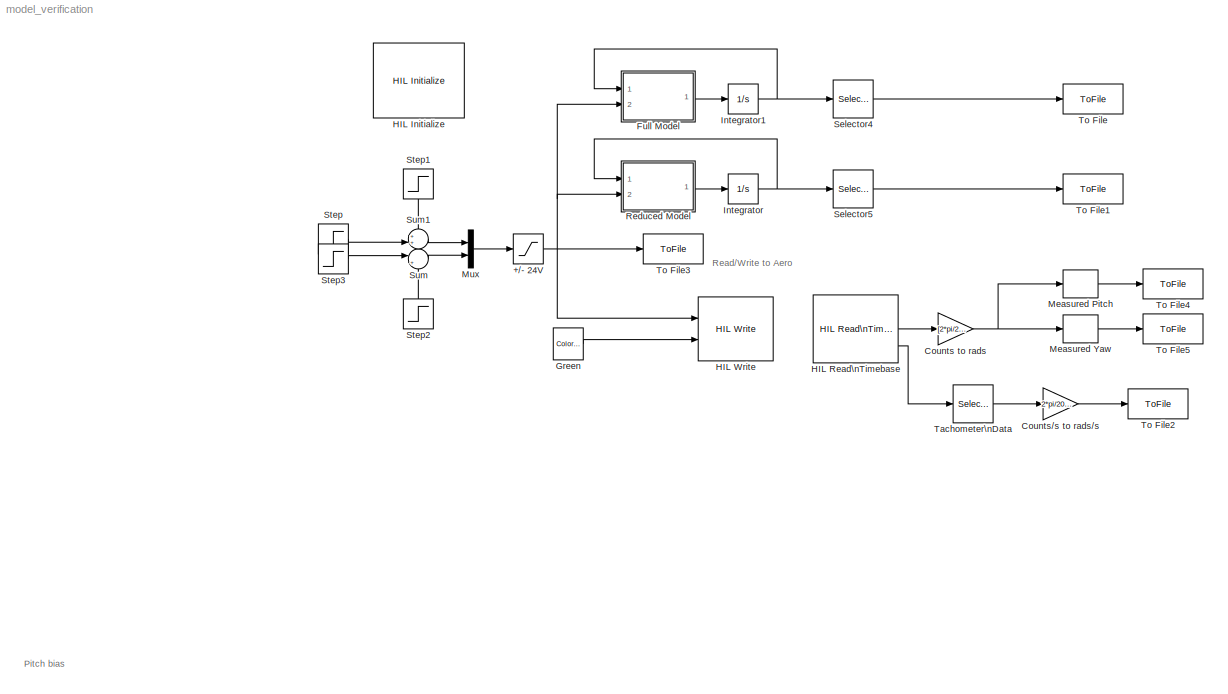
MODEL model_verification
KIND model
CONFIG PreLoadFcn = quanser_aero_lqr
BLOCK [Saturate] +//- 24V
  LowerLimit = -24
  SID = 99
  UpperLimit = 24
BLOCK [Gain] Counts to rads
  Gain = [2*pi/2048 2*pi/4096]
  SID = 197
BLOCK [Gain] Counts//s to rads//s
  Gain = 2*pi/2048
  SID = 209
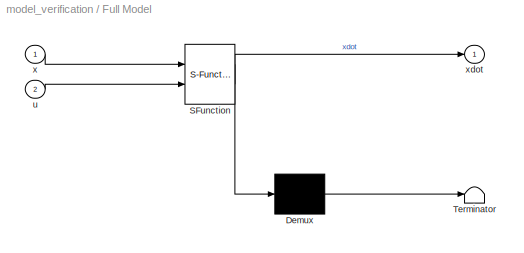
BLOCK [SubSystem] Full Model
  ErrorFcn = Stateflow.Translate.translate
  PermitHierarchicalResolution = ExplicitOnly
  Ports = [2, 1]
  RequestExecContextInheritance = off
  SFBlockType = MATLAB Function
  SID = 241
  TreatAsAtomicUnit = on
BLOCK [Demux] Full Model/ Demux 
  Outputs = 1
  Ports = [1, 1]
  SID = 241::23
BLOCK [S-Function] Full Model/ SFunction 
  EnableBusSupport = on
  FunctionName = sf_sfun
  PortCounts = [2 2]
  Ports = [2, 2]
  SFcnIsStateOwnerBlock = off
  SFunctionDeploymentMode = off
  SID = 241::22
  Tag = Stateflow S-Function 1
BLOCK [Terminator] Full Model/ Terminator 
  SID = 241::24
BLOCK [Inport] Full Model/u
  Port = 2
  SID = 241::1
BLOCK [Inport] Full Model/x
  SID = 241::25
BLOCK [Outport] Full Model/xdot
  SID = 241::5
BLOCK [Reference] Green  REF=quarc_library/Sources/Signals/Color Constant
  Ports = [0, 1]
  RTWMemSecDataConstants = Inherit from model
  RTWMemSecDataInternal = Inherit from model
  RTWMemSecDataParameters = Inherit from model
  RTWMemSecFuncExecute = Inherit from model
  RTWMemSecFuncInitTerm = Inherit from model
  SID = 194
  SourceBlock = quarc_library/Sources/Signals/Color Constant
  SourceProductName = QUARC Targets
  SourceType = Color Constant
  color = [0 1 0]
BLOCK [Reference] HIL Initialize  REF=quarc_library/Data Acquisition/Generic/Configuration/HIL Initialize
  AttributesFormatString = %<object_name> (%<board_type>-%<board_number>)
  MultiThreadCoSim = auto
  Ports = []
  Priority = -99
  SID = 185
  SourceBlock = quarc_library/Data Acquisition/Generic/Configuration/HIL Initialize
  SourceProductName = QUARC Targets
  SourceType = HIL Initialize
  UserData = DataTag0
  UserDataPersistent = on
  active = off
  analog_input_channels = [0:1]
  analog_input_configurations = []
  analog_input_maximums = 3
  analog_input_minimums = -3
  analog_output_channels = [0:1]
  analog_output_maximums = 24
  analog_output_minimums = -24
  board_number = 0
  board_type = quanser_aero_usb
  clock_modes = []
  digital_input_channels = []
  digital_output_channels = [0:1]
  digital_output_configuration = []
  encoder_channels = [0:3]
  encoder_filter_frequency = []
  exclusive = off
  final_analog_outputs = [0]
  final_digital_outputs = [0]
  final_other_outputs = [1 0 0]
  final_pwm_outputs = []
  hardware_clocks = [0]
  initial_analog_outputs = [0]
  initial_clock_frequencies = []
  initial_digital_outputs = [1]
  initial_encoder_counts = [0]
  initial_other_outputs = [0 1 0]
  initial_pwm_outputs = []
  object_name = HIL-1
  other_output_channels = [11000:11002]
  pwm_alignment = []
  pwm_channels = []
  pwm_configuration = []
  pwm_frequency = []
  pwm_leading_deadband = []
  pwm_modes = []
  pwm_polarity = []
  pwm_trailing_deadband = []
  quadrature = [4]
  set_analog_input_params_at_start = off
  set_analog_input_params_at_switch_in = off
  set_analog_output_params_at_start = off
  set_analog_output_params_at_switch_in = off
  set_analog_outputs_at_start = on
  set_analog_outputs_at_switch_in = off
  set_analog_outputs_at_switch_out = off
  set_analog_outputs_at_terminate = on
  set_analog_outputs_on_watchdog = on
  set_clock_frequencies_at_start = off
  set_clock_frequencies_at_switch_in = off
  set_clock_params_at_start = off
  set_clock_params_at_switch_in = off
  set_digital_output_params_at_start = off
  set_digital_output_params_at_switch_in = off
  set_digital_outputs_at_start = on
  set_digital_outputs_at_switch_in = off
  set_digital_outputs_at_switch_out = off
  set_digital_outputs_at_terminate = on
  set_digital_outputs_on_watchdog = on
  set_encoder_counts_at_start = on
  set_encoder_counts_at_switch_in = off
  set_encoder_params_at_start = off
  set_encoder_params_at_switch_in = off
  set_other_outputs_at_start = on
  set_other_outputs_at_switch_in = off
  set_other_outputs_at_switch_out = off
  set_other_outputs_at_terminate = on
  set_other_outputs_on_watchdog = on
  set_pwm_outputs_at_start = off
  set_pwm_outputs_at_switch_in = off
  set_pwm_outputs_at_switch_out = off
  set_pwm_outputs_at_terminate = off
  set_pwm_outputs_on_watchdog = off
  set_pwm_params_at_start = off
  set_pwm_params_at_switch_in = off
  watchdog_analog_outputs = [0]
  watchdog_digital_outputs = [0]
  watchdog_other_outputs = [0 0 1]
  watchdog_pwm_outputs = []
BLOCK [Reference] HIL Read\nTimebase  REF=quarc_library/Data Acquisition/Generic/Timebases/HIL Read\nTimebase
  AttributesFormatString = (%<object_name>)
  MultiThreadCoSim = auto
  Ports = [0, 3]
  SID = 186
  SourceBlock = quarc_library/Data Acquisition/Generic/Timebases/HIL Read\nTimebase
  SourceProductName = QUARC Targets
  SourceType = HIL Read Timebase
  UserData = DataTag1
  UserDataPersistent = on
  active = on
  analog_channels = [0:1]
  clock = 0
  data_type_mode = Inherit via back propagation
  digital_channels = []
  digital_data_type = boolean
  encoder_channels = [2:3]
  encoder_data_type = double
  object_name = HIL-1
  other_channels = [4000 4002 14000 14001]
  overflow_mode = Error on overflow
  samples_in_buffer = max(ceil(1/qc_get_step_size), 1)
  vector_output = on
BLOCK [Reference] HIL Write  REF=quarc_library/Data Acquisition/Generic/Immediate I//O/HIL Write
  AttributesFormatString = (%<object_name>)
  MultiThreadCoSim = auto
  Ports = [2]
  SID = 187
  SourceBlock = quarc_library/Data Acquisition/Generic/Immediate I//O/HIL Write
  SourceProductName = QUARC Targets
  SourceType = HIL Write
  UserData = DataTag2
  UserDataPersistent = on
  active = off
  analog_channels = [0:1]
  digital_channels = []
  object_name = HIL-1
  other_channels = [11000:11002]
  pwm_channels = []
  sample_time = -1
  vector_input = on
BLOCK [Integrator] Integrator
  Ports = [1, 1]
  SID = 239
BLOCK [Integrator] Integrator1
  Ports = [1, 1]
  SID = 240
BLOCK [Selector] Measured Pitch
  IndexOptions = Index vector (dialog)
  Indices = [1]
  InputPortWidth = 2
  OutputSizes = 1
  Ports = [1, 1]
  SID = 227
BLOCK [Selector] Measured Yaw
  IndexOptions = Index vector (dialog)
  Indices = [2]
  InputPortWidth = 2
  OutputSizes = 1
  Ports = [1, 1]
  SID = 215
BLOCK [Mux] Mux
  DisplayOption = bar
  Inputs = 2
  Ports = [2, 1]
  SID = 219
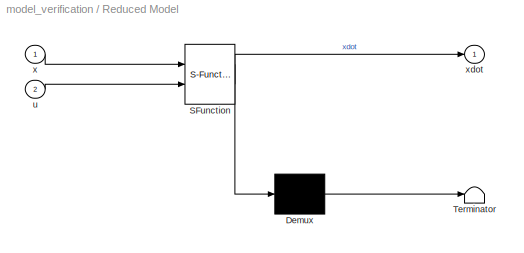
BLOCK [SubSystem] Reduced Model
  ErrorFcn = Stateflow.Translate.translate
  PermitHierarchicalResolution = ExplicitOnly
  Ports = [2, 1]
  RequestExecContextInheritance = off
  SFBlockType = MATLAB Function
  SID = 230
  TreatAsAtomicUnit = on
BLOCK [Demux] Reduced Model/ Demux 
  Outputs = 1
  Ports = [1, 1]
  SID = 230::23
BLOCK [S-Function] Reduced Model/ SFunction 
  EnableBusSupport = on
  FunctionName = sf_sfun
  PortCounts = [2 2]
  Ports = [2, 2]
  SFcnIsStateOwnerBlock = off
  SFunctionDeploymentMode = off
  SID = 230::22
  Tag = Stateflow S-Function 2
BLOCK [Terminator] Reduced Model/ Terminator 
  SID = 230::24
BLOCK [Inport] Reduced Model/u
  Port = 2
  SID = 230::1
BLOCK [Inport] Reduced Model/x
  SID = 230::25
BLOCK [Outport] Reduced Model/xdot
  SID = 230::5
BLOCK [Selector] Selector4
  IndexOptions = Index vector (dialog)
  Indices = [1 2]
  InputPortWidth = 4
  OutputSizes = 1
  Ports = [1, 1]
  SID = 245
BLOCK [Selector] Selector5
  IndexOptions = Index vector (dialog)
  Indices = [1 2]
  InputPortWidth = 4
  OutputSizes = 1
  Ports = [1, 1]
  SID = 246
BLOCK [Step] Step
  After = 10
  SID = 223
  SampleTime = 0
  Time = 5
BLOCK [Step] Step1
  After = -10
  NameLocation = left
  SID = 224
  SampleTime = 0
  Time = 15
BLOCK [Step] Step2
  After = -10
  NameLocation = right
  SID = 225
  SampleTime = 0
  Time = 25
BLOCK [Step] Step3
  After = 10
  SID = 226
  SampleTime = 0
  Time = 15
BLOCK [Sum] Sum
  Inputs = |++
  Ports = [2, 1]
  SID = 220
BLOCK [Sum] Sum1
  Inputs = ++|
  Ports = [2, 1]
  SID = 221
BLOCK [Selector] Tachometer\nData
  IndexOptions = Index vector (dialog)
  Indices = [3 4]
  InputPortWidth = 4
  OutputSizes = 1
  Ports = [1, 1]
  SID = 211
BLOCK [ToFile] To File
  Filename = full_model.mat
  MatrixName = full_model
  Ports = [1]
  SID = 244
BLOCK [ToFile] To File1
  Filename = reduced_model.mat
  MatrixName = reduced_model
  Ports = [1]
  SID = 247
BLOCK [ToFile] To File2
  Filename = motor_speeds.mat
  MatrixName = motor_speeds
  Ports = [1]
  SID = 248
BLOCK [ToFile] To File3
  Filename = test_input.mat
  MatrixName = test_input
  Ports = [1]
  SID = 249
BLOCK [ToFile] To File4
  Filename = measured_pitch.mat
  MatrixName = measured_pitch
  Ports = [1]
  SID = 250
BLOCK [ToFile] To File5
  Filename = measured_yaw.mat
  MatrixName = measured_yaw
  Ports = [1]
  SID = 251
ANNOTATION (root): Pitch bias
ANNOTATION (root): Read/Write to Aero
NET +//- 24V:1 -> Full Model:2, HIL Write:1, Reduced Model:2, To File3:1
NET Counts to rads:1 -> Measured Pitch:1, Measured Yaw:1
LINE Counts//s to rads//s:1 -> To File2:1
LINE Full Model/ Demux :1 -> Full Model/ Terminator :1
LINE Full Model/ SFunction :1 -> Full Model/ Demux :1
LINE Full Model/ SFunction :2 -> Full Model/xdot:1
LINE Full Model/u:1 -> Full Model/ SFunction :2
LINE Full Model/x:1 -> Full Model/ SFunction :1
LINE Full Model:1 -> Integrator1:1
LINE Green:1 -> HIL Write:2
LINE HIL Read\nTimebase:2 -> Counts to rads:1
LINE HIL Read\nTimebase:3 -> Tachometer\nData:1
NET Integrator1:1 -> Full Model:1, Selector4:1
NET Integrator:1 -> Reduced Model:1, Selector5:1
LINE Measured Pitch:1 -> To File4:1
LINE Measured Yaw:1 -> To File5:1
LINE Mux:1 -> +//- 24V:1
LINE Reduced Model/ Demux :1 -> Reduced Model/ Terminator :1
LINE Reduced Model/ SFunction :1 -> Reduced Model/ Demux :1
LINE Reduced Model/ SFunction :2 -> Reduced Model/xdot:1
LINE Reduced Model/u:1 -> Reduced Model/ SFunction :2
LINE Reduced Model/x:1 -> Reduced Model/ SFunction :1
LINE Reduced Model:1 -> Integrator:1
LINE Selector4:1 -> To File:1
LINE Selector5:1 -> To File1:1
LINE Step1:1 -> Sum1:1
LINE Step2:1 -> Sum:2
LINE Step3:1 -> Sum:1
LINE Step:1 -> Sum1:2
LINE Sum1:1 -> Mux:1
LINE Sum:1 -> Mux:2
LINE Tachometer\nData:1 -> Counts//s to rads//s:1
note: NET lines group one-source signal fan-out (src -> all destinations, sorted); 1:1 wires keep LINE
CHART Full Model states=1 transitions=1
  STATE_LABEL 'eML_blk_kernel()'
CHART Reduced Model states=1 transitions=1
  STATE_LABEL 'eML_blk_kernel()'
